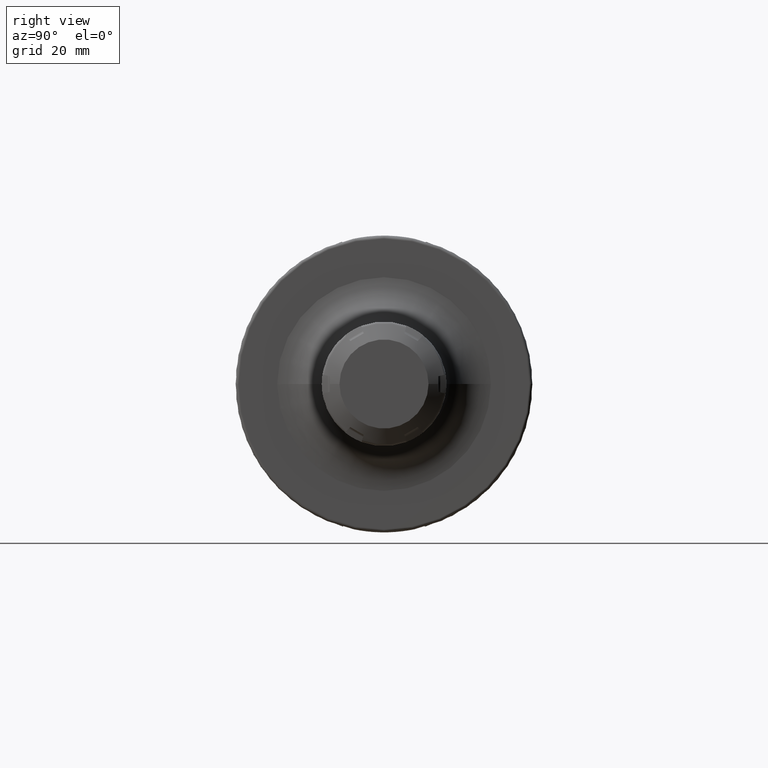
[diagram: clean part render]
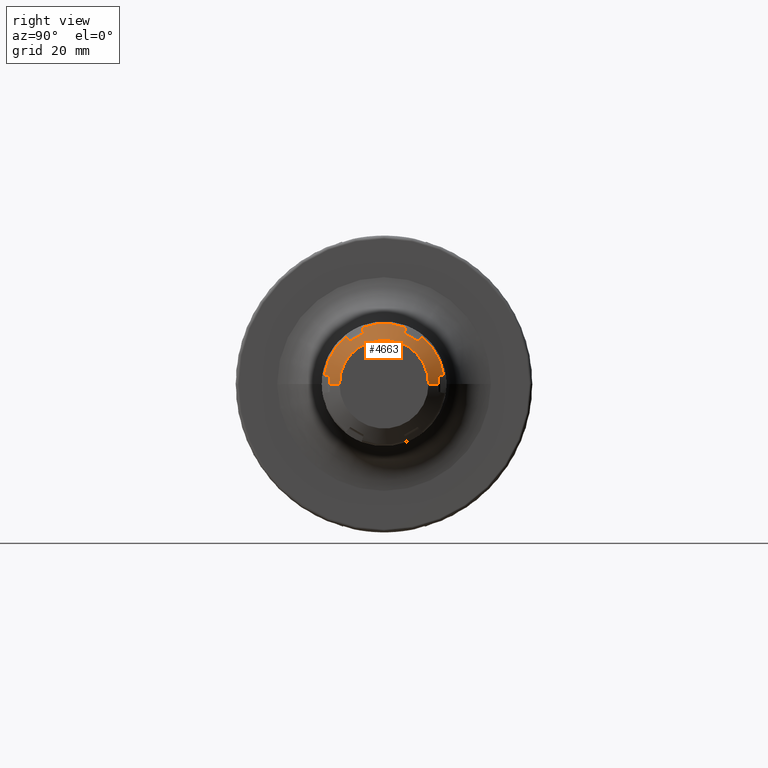
[diagram: same view with one face highlighted and labeled with its STEP entity id]
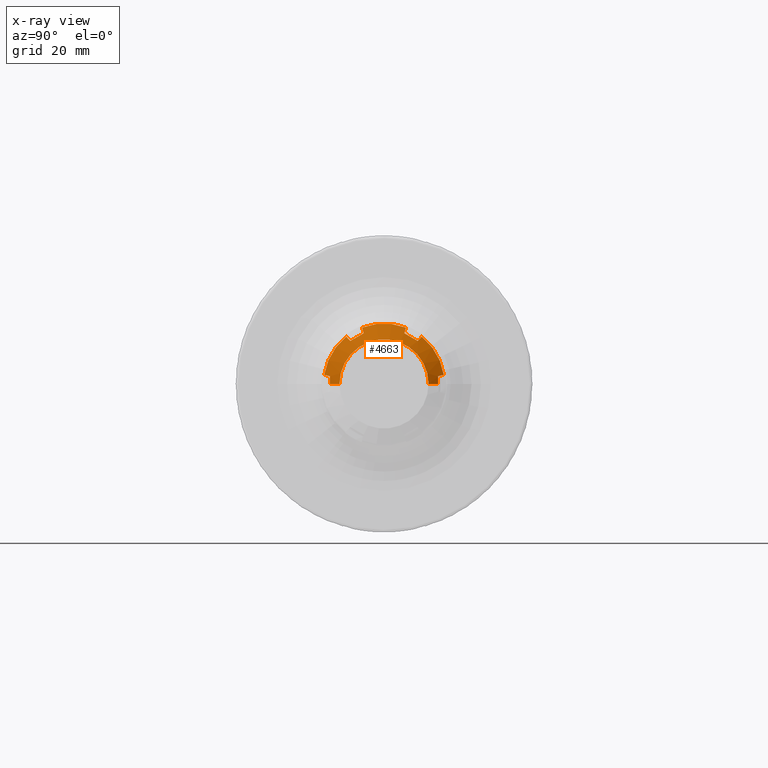
[diagram: x-ray of the same camera — body ghosted, the highlighted face saturated]
A machine part, right view. The second image highlights one B-rep face of the part: STEP entity #4663.
The next image is the same camera in x-ray: the body ghosted, the highlighted face saturated — about 0% of this face is hidden behind the body in this view.
In plain terms, the highlighted conical surface has half-angle 60 deg.
Its self-contained STEP definition (entity closure, byte-faithful):
#3452=DIRECTION('',(-5.E-1,-8.660254037844E-1,0.E0));
#3453=VECTOR('',#3452,3.724539878802E0);
#3454=CARTESIAN_POINT('',(2.E1,-1.5E1,0.E0));
#3455=LINE('',#3454,#3453);
#3461=DIRECTION('',(-5.E-1,8.660254037844E-1,1.219275797742E-14));
#3462=VECTOR('',#3461,3.724539878802E0);
#3463=CARTESIAN_POINT('',(2.E1,1.5E1,0.E0));
#3464=LINE('',#3463,#3462);
#3706=CARTESIAN_POINT('',(1.689674230311E1,-2.014122163836E1,3.077631542997E0));
#3707=CARTESIAN_POINT('',(1.708907504526E1,-1.981659263641E1,2.996692442277E0));
#3708=CARTESIAN_POINT('',(1.747048804972E1,-1.917268684533E1,2.836148697367E0));
#3709=CARTESIAN_POINT('',(1.784538315893E1,-1.853947826048E1,2.678272065523E0));
#3710=CARTESIAN_POINT('',(1.803119743883E1,-1.822554615245E1,2.6E0));
#3712=CARTESIAN_POINT('',(1.689674230311E1,-1.915276904626E-14,0.E0));
#3713=DIRECTION('',(-1.E0,0.E0,0.E0));
#3714=DIRECTION('',(0.E0,-9.885262153796E-1,1.510494008833E-1));
#3715=AXIS2_PLACEMENT_3D('',#3712,#3713,#3714);
#3717=CARTESIAN_POINT('',(1.803119743883E1,-1.136443912607E1,1.448378596587E1));
#3718=CARTESIAN_POINT('',(1.784547076956E1,-1.158908480779E1,1.471641337916E1));
#3719=CARTESIAN_POINT('',(1.747066334160E1,-1.204230833280E1,1.518574007823E1));
#3720=CARTESIAN_POINT('',(1.708916272E1,-1.250340215670E1,1.566321671038E1));
#3721=CARTESIAN_POINT('',(1.689674230311E1,-1.273591791890E1,1.590399383057E1));
#3723=CARTESIAN_POINT('',(1.803119743883E1,-6.861107026386E0,1.708378596587E1));
#3724=CARTESIAN_POINT('',(1.807831826555E1,-7.361586372305E0,1.679483408078E1));
#3725=CARTESIAN_POINT('',(1.814168574823E1,-8.362425592320E0,1.621699928769E1));
#3726=CARTESIAN_POINT('',(1.814168449187E1,-9.863151221670E0,1.535055494160E1));
#3727=CARTESIAN_POINT('',(1.807831703246E1,-1.086397287704E1,1.477273028946E1));
#3728=CARTESIAN_POINT('',(1.803119743883E1,-1.136443912607E1,1.448378596587E1));
#3730=CARTESIAN_POINT('',(1.689674230311E1,-7.405303719456E0,1.898162537357E1));
#3731=CARTESIAN_POINT('',(1.708907504526E1,-7.313084535866E0,1.866001886072E1));
#3732=CARTESIAN_POINT('',(1.747048804972E1,-7.130166601835E0,1.802210821554E1));
#3733=CARTESIAN_POINT('',(1.784538315893E1,-6.950287483250E0,1.739479517924E1));
#3734=CARTESIAN_POINT('',(1.803119743883E1,-6.861107026386E0,1.708378596587E1));
#3736=CARTESIAN_POINT('',(1.689674230311E1,-1.915276904626E-14,0.E0));
#3737=DIRECTION('',(-1.E0,0.E0,0.E0));
#3738=DIRECTION('',(0.E0,-3.634504892985E-1,9.316135152673E-1));
#3739=AXIS2_PLACEMENT_3D('',#3736,#3737,#3738);
#3741=CARTESIAN_POINT('',(1.803119743883E1,6.861107026386E0,1.708378596587E1));
#3742=CARTESIAN_POINT('',(1.784547076956E1,6.950245435050E0,1.739464853974E1));
#3743=CARTESIAN_POINT('',(1.747066334160E1,7.130082516612E0,1.802181497552E1));
#3744=CARTESIAN_POINT('',(1.708916272E1,7.313042497819E0,1.865987225663E1));
#3745=CARTESIAN_POINT('',(1.689674230311E1,7.405303719456E0,1.898162537357E1));
#3747=CARTESIAN_POINT('',(1.803119743883E1,1.136443912607E1,1.448378596587E1));
#3748=CARTESIAN_POINT('',(1.807831826555E1,1.086395978015E1,1.477273785096E1));
#3749=CARTESIAN_POINT('',(1.814168574823E1,9.863120560131E0,1.535057264405E1));
#3750=CARTESIAN_POINT('',(1.814168449187E1,8.362394930781E0,1.621701699013E1));
#3751=CARTESIAN_POINT('',(1.807831703246E1,7.361573275411E0,1.679484164227E1));
#3752=CARTESIAN_POINT('',(1.803119743883E1,6.861107026386E0,1.708378596587E1));
#3754=CARTESIAN_POINT('',(1.689674230311E1,1.273591791890E1,1.590399383057E1));
#3755=CARTESIAN_POINT('',(1.708907504526E1,1.250350810055E1,1.566332641844E1));
#3756=CARTESIAN_POINT('',(1.747048804972E1,1.204252024350E1,1.518595951818E1));
#3757=CARTESIAN_POINT('',(1.784538315893E1,1.158919077723E1,1.471652311372E1));
#3758=CARTESIAN_POINT('',(1.803119743883E1,1.136443912607E1,1.448378596587E1));
#3760=CARTESIAN_POINT('',(1.689674230311E1,-1.915276904626E-14,0.E0));
#3761=DIRECTION('',(-1.E0,0.E0,0.E0));
#3762=DIRECTION('',(0.E0,6.250757260812E-1,7.805641143840E-1));
#3763=AXIS2_PLACEMENT_3D('',#3760,#3761,#3762);
#3765=CARTESIAN_POINT('',(1.803119743883E1,1.822554615245E1,2.6E0));
#3766=CARTESIAN_POINT('',(1.784547076956E1,1.853933024284E1,2.678235160582E0));
#3767=CARTESIAN_POINT('',(1.747066334160E1,1.917239084941E1,2.836074897296E0));
#3768=CARTESIAN_POINT('',(1.708916272E1,1.981644465452E1,2.996655546247E0));
#3769=CARTESIAN_POINT('',(1.689674230311E1,2.014122163836E1,3.077631542997E0));
#3771=CARTESIAN_POINT('',(1.813773006060E1,1.822554615245E1,
4.663706011864E-14));
#3772=CARTESIAN_POINT('',(1.813773006060E1,1.822554615245E1,2.889809035546E-1));
#3773=CARTESIAN_POINT('',(1.812978891864E1,1.822554615245E1,8.668802635554E-1));
#3774=CARTESIAN_POINT('',(1.809415446357E1,1.822554615245E1,1.733491685998E0));
#3775=CARTESIAN_POINT('',(1.805474752385E1,1.822554615245E1,2.311174784706E0));
#3776=CARTESIAN_POINT('',(1.803119743883E1,1.822554615245E1,2.6E0));
#3778=CARTESIAN_POINT('',(2.E1,-2.266909448450E-14,0.E0));
#3779=DIRECTION('',(1.E0,0.E0,0.E0));
#3780=DIRECTION('',(0.E0,1.E0,0.E0));
#3781=AXIS2_PLACEMENT_3D('',#3778,#3779,#3780);
#3783=CARTESIAN_POINT('',(1.803119743883E1,-1.822554615245E1,2.6E0));
#3784=CARTESIAN_POINT('',(1.805475075341E1,-1.822554615245E1,2.311135176476E0));
#3785=CARTESIAN_POINT('',(1.809415978675E1,-1.822554615245E1,1.733399257211E0));
#3786=CARTESIAN_POINT('',(1.812979067473E1,-1.822554615245E1,
8.668016124823E-1));
#3787=CARTESIAN_POINT('',(1.813773006060E1,-1.822554615245E1,
2.889472613190E-1));
#3788=CARTESIAN_POINT('',(1.813773006060E1,-1.822554615245E1,0.E0));
#4188=CARTESIAN_POINT('',(2.E1,1.5E1,0.E0));
#4189=CARTESIAN_POINT('',(2.E1,-1.5E1,0.E0));
#4190=VERTEX_POINT('',#4188);
#4191=VERTEX_POINT('',#4189);
#4200=VERTEX_POINT('',#3765);
#4201=VERTEX_POINT('',#3769);
#4202=VERTEX_POINT('',#3771);
#4217=VERTEX_POINT('',#3754);
#4218=VERTEX_POINT('',#3758);
#4219=VERTEX_POINT('',#3741);
#4220=VERTEX_POINT('',#3745);
#4231=VERTEX_POINT('',#3730);
#4232=VERTEX_POINT('',#3734);
#4233=VERTEX_POINT('',#3717);
#4234=VERTEX_POINT('',#3721);
#4245=VERTEX_POINT('',#3706);
#4246=VERTEX_POINT('',#3710);
#4247=VERTEX_POINT('',#3788);
#4633=CARTESIAN_POINT('',(1.844837115155E1,-2.091093176538E-14,0.E0));
#4634=DIRECTION('',(-1.E0,0.E0,0.E0));
#4635=DIRECTION('',(0.E0,1.E0,0.E0));
#4636=AXIS2_PLACEMENT_3D('',#4633,#4634,#4635);
#4637=CONICAL_SURFACE('',#4636,1.76875E1,6.E1);
#4639=ORIENTED_EDGE('',*,*,#4638,.F.);
#4640=ORIENTED_EDGE('',*,*,#4488,.T.);
#4642=ORIENTED_EDGE('',*,*,#4641,.F.);
#4644=ORIENTED_EDGE('',*,*,#4643,.F.);
#4646=ORIENTED_EDGE('',*,*,#4645,.F.);
#4647=ORIENTED_EDGE('',*,*,#4472,.T.);
#4648=ORIENTED_EDGE('',*,*,#4610,.F.);
#4649=ORIENTED_EDGE('',*,*,#4627,.F.);
#4650=ORIENTED_EDGE('',*,*,#4548,.F.);
#4651=ORIENTED_EDGE('',*,*,#4456,.T.);
#4653=ORIENTED_EDGE('',*,*,#4652,.F.);
#4655=ORIENTED_EDGE('',*,*,#4654,.F.);
#4656=ORIENTED_EDGE('',*,*,#4326,.F.);
#4657=ORIENTED_EDGE('',*,*,#4297,.T.);
#4658=ORIENTED_EDGE('',*,*,#4323,.T.);
#4660=ORIENTED_EDGE('',*,*,#4659,.F.);
#4661=EDGE_LOOP('',(#4639,#4640,#4642,#4644,#4646,#4647,#4648,#4649,#4650,#4651,
#4653,#4655,#4656,#4657,#4658,#4660));
#4662=FACE_OUTER_BOUND('',#4661,.F.);
#4663=ADVANCED_FACE('',(#4662),#4637,.T.);
#3711=B_SPLINE_CURVE_WITH_KNOTS('',3,(#3706,#3707,#3708,#3709,#3710),
.UNSPECIFIED.,.F.,.F.,(4,1,4),(0.E0,5.E-1,1.E0),.UNSPECIFIED.);
#3716=CIRCLE('',#3715,2.0375E1);
#3722=B_SPLINE_CURVE_WITH_KNOTS('',3,(#3717,#3718,#3719,#3720,#3721),
.UNSPECIFIED.,.F.,.F.,(4,1,4),(0.E0,5.E-1,1.E0),.UNSPECIFIED.);
#3729=B_SPLINE_CURVE_WITH_KNOTS('',3,(#3723,#3724,#3725,#3726,#3727,#3728),
.UNSPECIFIED.,.F.,.F.,(4,1,1,4),(0.E0,3.333333333333E-1,6.666666666667E-1,1.E0),
.UNSPECIFIED.);
#3735=B_SPLINE_CURVE_WITH_KNOTS('',3,(#3730,#3731,#3732,#3733,#3734),
.UNSPECIFIED.,.F.,.F.,(4,1,4),(0.E0,5.E-1,1.E0),.UNSPECIFIED.);
#3740=CIRCLE('',#3739,2.0375E1);
#3746=B_SPLINE_CURVE_WITH_KNOTS('',3,(#3741,#3742,#3743,#3744,#3745),
.UNSPECIFIED.,.F.,.F.,(4,1,4),(0.E0,5.E-1,1.E0),.UNSPECIFIED.);
#3753=B_SPLINE_CURVE_WITH_KNOTS('',3,(#3747,#3748,#3749,#3750,#3751,#3752),
.UNSPECIFIED.,.F.,.F.,(4,1,1,4),(0.E0,3.333333333333E-1,6.666666666667E-1,1.E0),
.UNSPECIFIED.);
#3759=B_SPLINE_CURVE_WITH_KNOTS('',3,(#3754,#3755,#3756,#3757,#3758),
.UNSPECIFIED.,.F.,.F.,(4,1,4),(0.E0,5.E-1,1.E0),.UNSPECIFIED.);
#3764=CIRCLE('',#3763,2.0375E1);
#3770=B_SPLINE_CURVE_WITH_KNOTS('',3,(#3765,#3766,#3767,#3768,#3769),
.UNSPECIFIED.,.F.,.F.,(4,1,4),(0.E0,5.E-1,1.E0),.UNSPECIFIED.);
#3777=B_SPLINE_CURVE_WITH_KNOTS('',3,(#3771,#3772,#3773,#3774,#3775,#3776),
.UNSPECIFIED.,.F.,.F.,(4,1,1,4),(0.E0,3.333333333333E-1,6.666666666667E-1,1.E0),
.UNSPECIFIED.);
#3782=CIRCLE('',#3781,1.5E1);
#3789=B_SPLINE_CURVE_WITH_KNOTS('',3,(#3783,#3784,#3785,#3786,#3787,#3788),
.UNSPECIFIED.,.F.,.F.,(4,1,1,4),(0.E0,3.333333333333E-1,6.666666666667E-1,1.E0),
.UNSPECIFIED.);
#4297=EDGE_CURVE('',#4190,#4191,#3782,.T.);
#4323=EDGE_CURVE('',#4191,#4247,#3455,.T.);
#4326=EDGE_CURVE('',#4190,#4202,#3464,.T.);
#4456=EDGE_CURVE('',#4217,#4201,#3764,.T.);
#4472=EDGE_CURVE('',#4231,#4220,#3740,.T.);
#4488=EDGE_CURVE('',#4245,#4234,#3716,.T.);
#4548=EDGE_CURVE('',#4217,#4218,#3759,.T.);
#4610=EDGE_CURVE('',#4219,#4220,#3746,.T.);
#4627=EDGE_CURVE('',#4218,#4219,#3753,.T.);
#4638=EDGE_CURVE('',#4245,#4246,#3711,.T.);
#4641=EDGE_CURVE('',#4233,#4234,#3722,.T.);
#4643=EDGE_CURVE('',#4232,#4233,#3729,.T.);
#4645=EDGE_CURVE('',#4231,#4232,#3735,.T.);
#4652=EDGE_CURVE('',#4200,#4201,#3770,.T.);
#4654=EDGE_CURVE('',#4202,#4200,#3777,.T.);
#4659=EDGE_CURVE('',#4246,#4247,#3789,.T.);